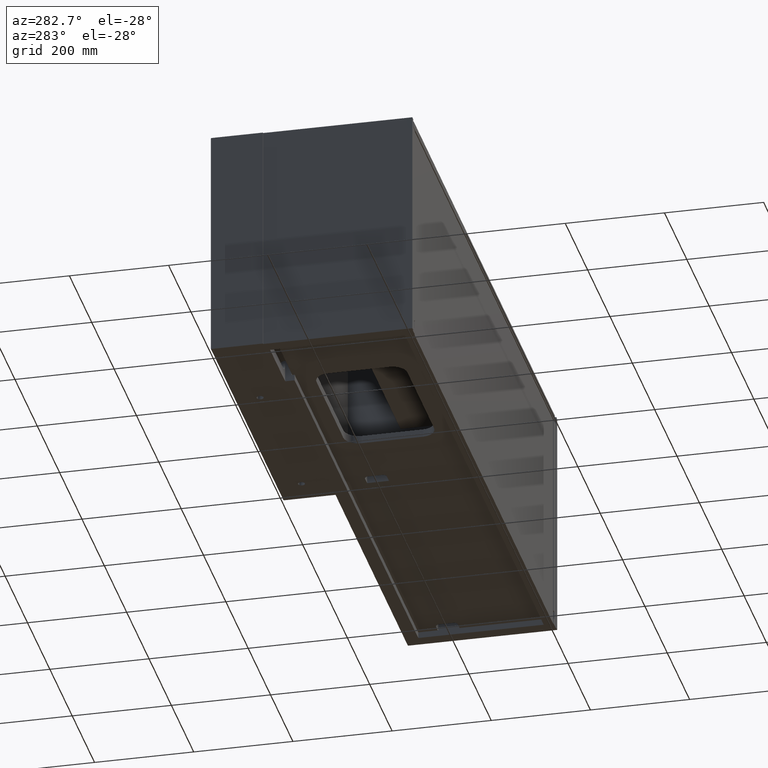
[diagram: clean part render]
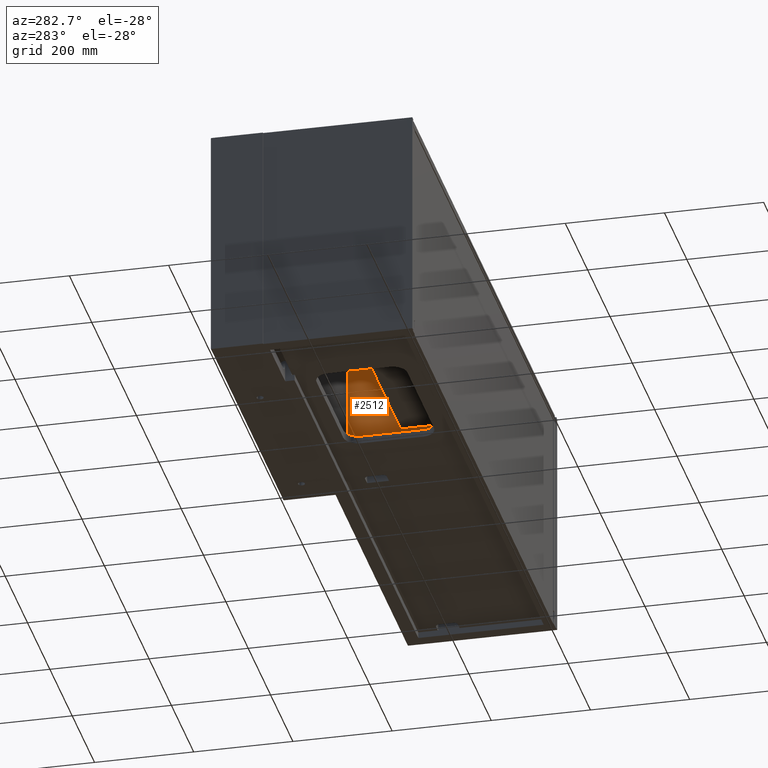
[diagram: same view with one face highlighted and labeled with its STEP entity id]
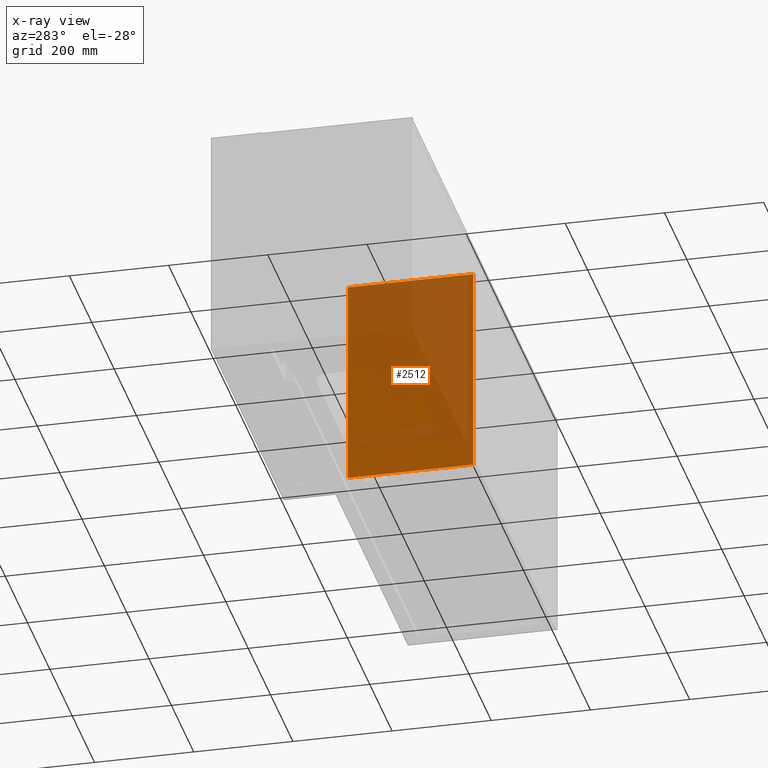
[diagram: x-ray of the same camera — body ghosted, the highlighted face saturated]
A machine part, auxiliary view. The second image highlights one B-rep face of the part: STEP entity #2512.
The next image is the same camera in x-ray: the body ghosted, the highlighted face saturated — about 68% of this face is hidden behind the body in this view.
In plain terms, the highlighted planar face has unit normal (1, 0, -0).
Its self-contained STEP definition (entity closure, byte-faithful):
#236 = VERTEX_POINT ( 'NONE', #394 ) ;
#394 = CARTESIAN_POINT ( 'NONE',  ( 640.5000000000003411, 20.00000000000000000, -16.00000000000001421 ) ) ;
#547 = FACE_OUTER_BOUND ( 'NONE', #11934, .T. ) ;
#653 = LINE ( 'NONE', #5643, #8117 ) ;
#1975 = CARTESIAN_POINT ( 'NONE',  ( 640.5000000000002274, 272.9999999999999432, -440.4999999999998295 ) ) ;
#2512 = ADVANCED_FACE ( 'NONE', ( #547 ), #5537, .F. ) ;
#3105 = LINE ( 'NONE', #8116, #4016 ) ;
#3192 = VECTOR ( 'NONE', #15395, 1000.000000000000000 ) ;
#3477 = AXIS2_PLACEMENT_3D ( 'NONE', #10531, #15485, #4309 ) ;
#4016 = VECTOR ( 'NONE', #13076, 1000.000000000000000 ) ;
#4309 = DIRECTION ( 'NONE',  ( -2.615366371319569642E-16, 0.0000000000000000000, -1.000000000000000000 ) ) ;
#4429 = DIRECTION ( 'NONE',  ( -0.0000000000000000000, -1.000000000000000000, -0.0000000000000000000 ) ) ;
#4554 = CARTESIAN_POINT ( 'NONE',  ( 640.5000000000003411, 272.9999999999999432, -16.00000000000001421 ) ) ;
#4568 = ORIENTED_EDGE ( 'NONE', *, *, #12489, .T. ) ;
#5444 = LINE ( 'NONE', #10442, #3192 ) ;
#5537 = PLANE ( 'NONE',  #3477 ) ;
#5643 = CARTESIAN_POINT ( 'NONE',  ( 640.5000000000003411, 697.9249933811846631, -16.00000000000001421 ) ) ;
#7093 = VERTEX_POINT ( 'NONE', #1975 ) ;
#7415 = EDGE_CURVE ( 'NONE', #10569, #236, #653, .T. ) ;
#7416 = VECTOR ( 'NONE', #4429, 1000.000000000000000 ) ;
#8116 = CARTESIAN_POINT ( 'NONE',  ( 640.5000000000002274, 20.00000000000000000, -440.4999999999998295 ) ) ;
#8117 = VECTOR ( 'NONE', #10629, 1000.000000000000000 ) ;
#8926 = VERTEX_POINT ( 'NONE', #15904 ) ;
#10442 = CARTESIAN_POINT ( 'NONE',  ( 640.5000000000002274, 272.9999999999999432, -440.4999999999998295 ) ) ;
#10531 = CARTESIAN_POINT ( 'NONE',  ( 640.5000000000002274, 697.9249933811846631, -440.4999999999998295 ) ) ;
#10569 = VERTEX_POINT ( 'NONE', #4554 ) ;
#10629 = DIRECTION ( 'NONE',  ( -0.0000000000000000000, -1.000000000000000000, -0.0000000000000000000 ) ) ;
#10653 = LINE ( 'NONE', #15608, #7416 ) ;
#10886 = EDGE_CURVE ( 'NONE', #7093, #10569, #5444, .T. ) ;
#11934 = EDGE_LOOP ( 'NONE', ( #16097, #14861, #4568, #15039 ) ) ;
#12489 = EDGE_CURVE ( 'NONE', #8926, #236, #3105, .T. ) ;
#13076 = DIRECTION ( 'NONE',  ( 2.615366371319569149E-16, 0.0000000000000000000, 1.000000000000000000 ) ) ;
#14861 = ORIENTED_EDGE ( 'NONE', *, *, #15576, .T. ) ;
#15039 = ORIENTED_EDGE ( 'NONE', *, *, #7415, .F. ) ;
#15395 = DIRECTION ( 'NONE',  ( 2.615366371319569642E-16, -0.0000000000000000000, 1.000000000000000000 ) ) ;
#15485 = DIRECTION ( 'NONE',  ( 1.000000000000000000, 0.0000000000000000000, -2.615366371319569642E-16 ) ) ;
#15576 = EDGE_CURVE ( 'NONE', #7093, #8926, #10653, .T. ) ;
#15608 = CARTESIAN_POINT ( 'NONE',  ( 640.5000000000002274, 697.9249933811846631, -440.4999999999998295 ) ) ;
#15904 = CARTESIAN_POINT ( 'NONE',  ( 640.5000000000002274, 20.00000000000000000, -440.4999999999998295 ) ) ;
#16097 = ORIENTED_EDGE ( 'NONE', *, *, #10886, .F. ) ;